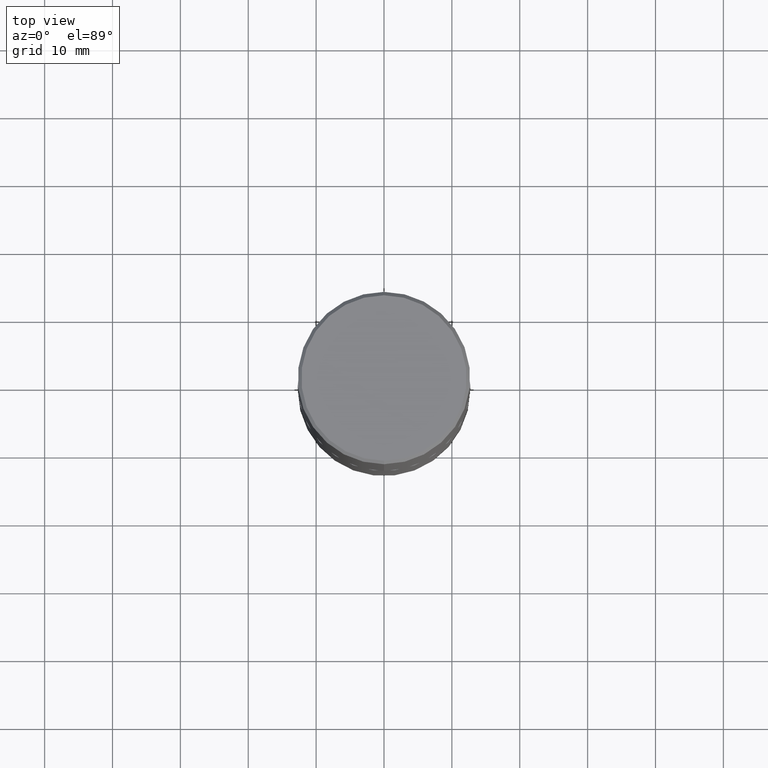
[diagram: clean part render]
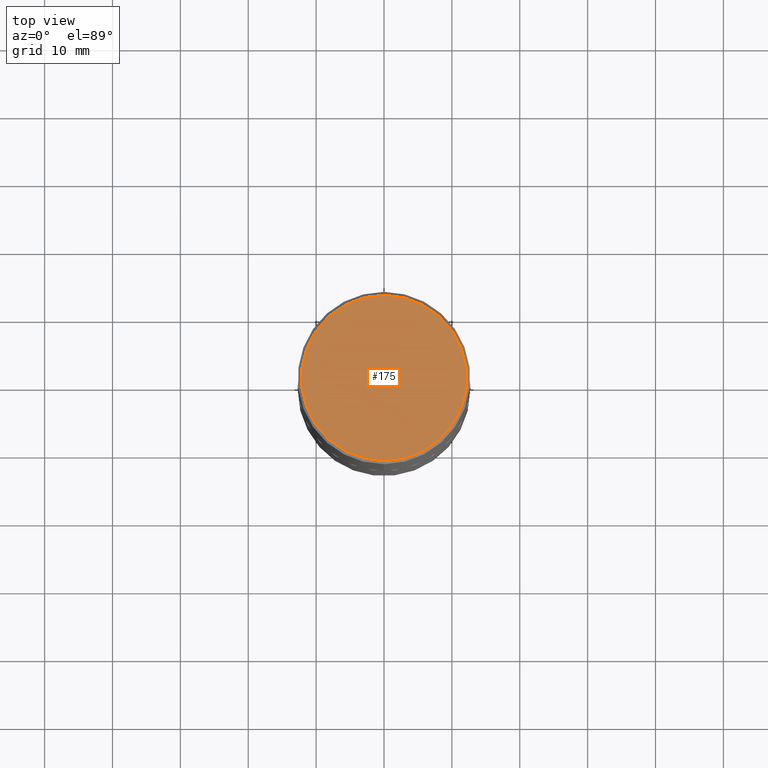
[diagram: same view with one face highlighted and labeled with its STEP entity id]
A machine part, top view. The second image highlights one B-rep face of the part: STEP entity #175.
In plain terms, the highlighted planar face has unit normal (0, -0, -1).
Its self-contained STEP definition (entity closure, byte-faithful):
#14 = FACE_OUTER_BOUND ( 'NONE', #151, .T. ) ;
#23 = DIRECTION ( 'NONE',  ( -2.446529474774470711E-29, 3.489962401053712253E-15, 1.000000000000000000 ) ) ;
#43 = EDGE_CURVE ( 'NONE', #369, #340, #290, .T. ) ;
#49 = CARTESIAN_POINT ( 'NONE',  ( 3.421651712066269268E-15, 0.4799999999999996492, -1.428337318218884943E-15 ) ) ;
#54 = CARTESIAN_POINT ( 'NONE',  ( -6.039126734728155395E-45, 8.614784925631203934E-31, 2.468446342868958109E-16 ) ) ;
#82 = CARTESIAN_POINT ( 'NONE',  ( -3.361644018908048478E-15, -0.4799999999999996492, 1.922026586792676170E-15 ) ) ;
#93 = ORIENTED_EDGE ( 'NONE', *, *, #326, .T. ) ;
#137 = AXIS2_PLACEMENT_3D ( 'NONE', #189, #23, #310 ) ;
#144 = DIRECTION ( 'NONE',  ( -6.982962677686265922E-15, -1.000000000000000000, 3.489962401053711859E-15 ) ) ;
#145 = PLANE ( 'NONE',  #170 ) ;
#151 = EDGE_LOOP ( 'NONE', ( #154, #93 ) ) ;
#154 = ORIENTED_EDGE ( 'NONE', *, *, #43, .T. ) ;
#159 = DIRECTION ( 'NONE',  ( 2.446529474774470431E-29, -3.489962401053712253E-15, -1.000000000000000000 ) ) ;
#170 = AXIS2_PLACEMENT_3D ( 'NONE', #398, #159, #243 ) ;
#172 = AXIS2_PLACEMENT_3D ( 'NONE', #54, #178, #144 ) ;
#175 = ADVANCED_FACE ( 'NONE', ( #14 ), #145, .F. ) ;
#178 = DIRECTION ( 'NONE',  ( -2.446529474774470711E-29, 3.489962401053712253E-15, 1.000000000000000000 ) ) ;
#189 = CARTESIAN_POINT ( 'NONE',  ( -6.039126734728155395E-45, 8.614784925631203934E-31, 2.468446342868958109E-16 ) ) ;
#226 = CIRCLE ( 'NONE', #172, 0.4799999999999996492 ) ;
#243 = DIRECTION ( 'NONE',  ( 6.982962677686265922E-15, 1.000000000000000000, -3.489962401053712253E-15 ) ) ;
#290 = CIRCLE ( 'NONE', #137, 0.4799999999999996492 ) ;
#310 = DIRECTION ( 'NONE',  ( -6.982962677686265922E-15, -1.000000000000000000, 3.489962401053711859E-15 ) ) ;
#326 = EDGE_CURVE ( 'NONE', #340, #369, #226, .T. ) ;
#340 = VERTEX_POINT ( 'NONE', #82 ) ;
#369 = VERTEX_POINT ( 'NONE', #49 ) ;
#398 = CARTESIAN_POINT ( 'NONE',  ( 3.351822085289405181E-15, 0.4799999999999996492, -1.551759635362332947E-15 ) ) ;